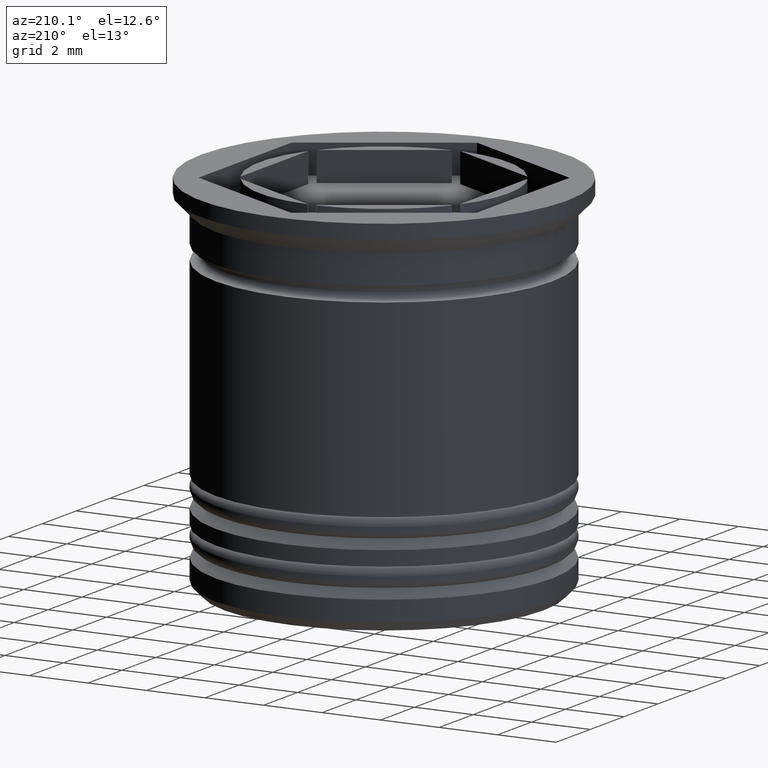
[diagram: clean part render]
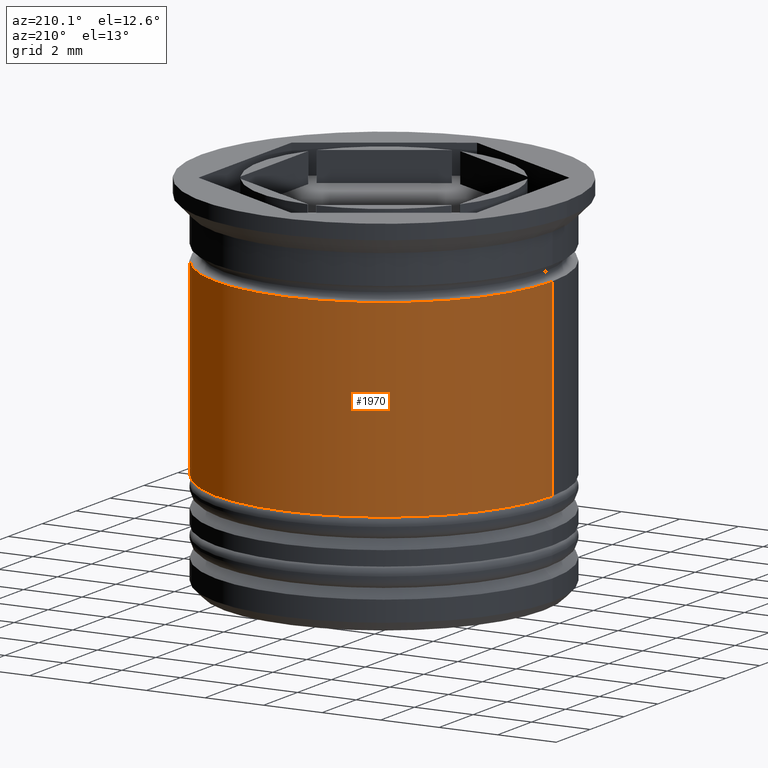
[diagram: same view with one face highlighted and labeled with its STEP entity id]
A machine part, auxiliary view. The second image highlights one B-rep face of the part: STEP entity #1970.
In plain terms, the highlighted cylindrical surface (partial cylindrical patch) has radius 5.75 mm, axis along (-0, -0, 1).
Its self-contained STEP definition (entity closure, byte-faithful):
#165 = EDGE_CURVE ( 'NONE', #1205, #387, #605, .T. ) ;
#168 = DIRECTION ( 'NONE',  ( -0.000000000000000000, -0.000000000000000000, 1.000000000000000000 ) ) ;
#264 = DIRECTION ( 'NONE',  ( 1.000000000000000000, 0.000000000000000000, 0.000000000000000000 ) ) ;
#327 = VECTOR ( 'NONE', #1845, 1000.000000000000000 ) ;
#387 = VERTEX_POINT ( 'NONE', #687 ) ;
#431 = EDGE_CURVE ( 'NONE', #387, #1385, #478, .T. ) ;
#478 = CIRCLE ( 'NONE', #1937, 5.749999999999999112 ) ;
#558 = CARTESIAN_POINT ( 'NONE',  ( -5.750000000000000888, 7.041719095097282852E-16, -9.000000000000001776 ) ) ;
#605 = LINE ( 'NONE', #1554, #861 ) ;
#687 = CARTESIAN_POINT ( 'NONE',  ( 5.749999999999999112, 0.000000000000000000, -2.500000000000000000 ) ) ;
#688 = EDGE_CURVE ( 'NONE', #1497, #1385, #1424, .T. ) ;
#833 = AXIS2_PLACEMENT_3D ( 'NONE', #1450, #1106, #1717 ) ;
#861 = VECTOR ( 'NONE', #168, 1000.000000000000000 ) ;
#991 = ORIENTED_EDGE ( 'NONE', *, *, #1867, .T. ) ;
#1060 = DIRECTION ( 'NONE',  ( 1.000000000000000000, 0.000000000000000000, 0.000000000000000000 ) ) ;
#1106 = DIRECTION ( 'NONE',  ( -0.000000000000000000, -0.000000000000000000, 1.000000000000000000 ) ) ;
#1171 = CIRCLE ( 'NONE', #833, 5.750000000000001776 ) ;
#1173 = CARTESIAN_POINT ( 'NONE',  ( -5.749999999999999112, 7.041719095097279894E-16, -2.500000000000000000 ) ) ;
#1205 = VERTEX_POINT ( 'NONE', #1668 ) ;
#1210 = AXIS2_PLACEMENT_3D ( 'NONE', #1981, #1225, #1060 ) ;
#1225 = DIRECTION ( 'NONE',  ( -0.000000000000000000, -0.000000000000000000, 1.000000000000000000 ) ) ;
#1371 = ORIENTED_EDGE ( 'NONE', *, *, #688, .T. ) ;
#1384 = CYLINDRICAL_SURFACE ( 'NONE', #1210, 5.750000000000000000 ) ;
#1385 = VERTEX_POINT ( 'NONE', #1173 ) ;
#1396 = ORIENTED_EDGE ( 'NONE', *, *, #165, .F. ) ;
#1424 = LINE ( 'NONE', #1862, #327 ) ;
#1450 = CARTESIAN_POINT ( 'NONE',  ( 0.000000000000000000, 0.000000000000000000, -9.000000000000001776 ) ) ;
#1497 = VERTEX_POINT ( 'NONE', #558 ) ;
#1554 = CARTESIAN_POINT ( 'NONE',  ( 5.750000000000000000, 0.000000000000000000, 0.000000000000000000 ) ) ;
#1632 = ORIENTED_EDGE ( 'NONE', *, *, #431, .F. ) ;
#1668 = CARTESIAN_POINT ( 'NONE',  ( 5.750000000000001776, 0.000000000000000000, -9.000000000000001776 ) ) ;
#1717 = DIRECTION ( 'NONE',  ( 1.000000000000000000, 0.000000000000000000, 0.000000000000000000 ) ) ;
#1785 = DIRECTION ( 'NONE',  ( -0.000000000000000000, -0.000000000000000000, 1.000000000000000000 ) ) ;
#1799 = CARTESIAN_POINT ( 'NONE',  ( 0.000000000000000000, 0.000000000000000000, -2.500000000000000000 ) ) ;
#1824 = FACE_OUTER_BOUND ( 'NONE', #1993, .T. ) ;
#1845 = DIRECTION ( 'NONE',  ( -0.000000000000000000, -0.000000000000000000, 1.000000000000000000 ) ) ;
#1862 = CARTESIAN_POINT ( 'NONE',  ( -5.750000000000000000, 7.041719095097280880E-16, 0.000000000000000000 ) ) ;
#1867 = EDGE_CURVE ( 'NONE', #1205, #1497, #1171, .T. ) ;
#1937 = AXIS2_PLACEMENT_3D ( 'NONE', #1799, #1785, #264 ) ;
#1970 = ADVANCED_FACE ( 'NONE', ( #1824 ), #1384, .T. ) ;
#1981 = CARTESIAN_POINT ( 'NONE',  ( 0.000000000000000000, 0.000000000000000000, 0.000000000000000000 ) ) ;
#1993 = EDGE_LOOP ( 'NONE', ( #991, #1371, #1632, #1396 ) ) ;